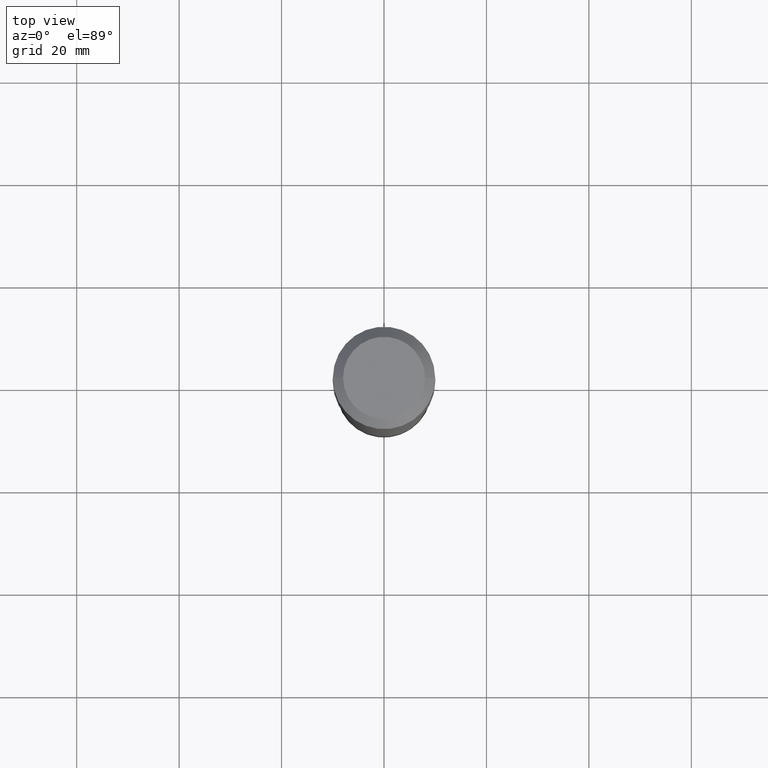
[diagram: clean part render]
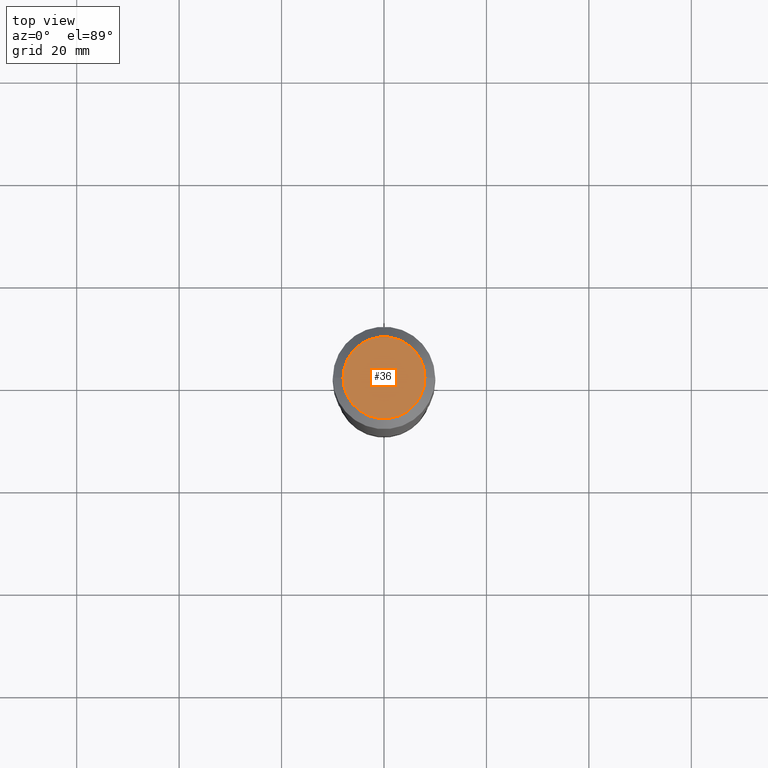
[diagram: same view with one face highlighted and labeled with its STEP entity id]
A machine part, top view. The second image highlights one B-rep face of the part: STEP entity #36.
In plain terms, the highlighted planar face has unit normal (0, -0, -1).
Its self-contained STEP definition (entity closure, byte-faithful):
#34 = ORIENTED_EDGE ( 'NONE', *, *, #495, .T. ) ;
#36 = ADVANCED_FACE ( 'NONE', ( #294 ), #449, .F. ) ;
#89 = CARTESIAN_POINT ( 'NONE',  ( -4.713871149261283817E-47, 6.730158695841841775E-33, 1.927594061857935365E-18 ) ) ;
#101 = EDGE_LOOP ( 'NONE', ( #428, #34 ) ) ;
#103 = CIRCLE ( 'NONE', #168, 0.3149600000000000177 ) ;
#114 = VERTEX_POINT ( 'NONE', #375 ) ;
#122 = DIRECTION ( 'NONE',  ( -2.445468806185136597E-29, 3.491481338843145583E-15, 1.000000000000000000 ) ) ;
#167 = DIRECTION ( 'NONE',  ( -1.000000000000000000, 6.982962677686265922E-15, -4.876176775795935793E-29 ) ) ;
#168 = AXIS2_PLACEMENT_3D ( 'NONE', #403, #122, #289 ) ;
#172 = AXIS2_PLACEMENT_3D ( 'NONE', #444, #490, #377 ) ;
#211 = CIRCLE ( 'NONE', #172, 0.3149600000000000177 ) ;
#234 = CARTESIAN_POINT ( 'NONE',  ( -0.3149600000000000177, 2.336813545274319235E-15, 3.855188123700009542E-18 ) ) ;
#259 = DIRECTION ( 'NONE',  ( 2.438088387897960049E-29, -3.491481338843145188E-15, -1.000000000000000000 ) ) ;
#289 = DIRECTION ( 'NONE',  ( 1.000000000000000000, -6.982962677686265922E-15, 4.876223630392693006E-29 ) ) ;
#291 = EDGE_CURVE ( 'NONE', #425, #114, #103, .T. ) ;
#294 = FACE_OUTER_BOUND ( 'NONE', #101, .T. ) ;
#320 = AXIS2_PLACEMENT_3D ( 'NONE', #89, #259, #167 ) ;
#375 = CARTESIAN_POINT ( 'NONE',  ( 0.3149600000000000177, -2.568339875860642378E-15, 3.855188123732540039E-18 ) ) ;
#377 = DIRECTION ( 'NONE',  ( 1.000000000000000000, -6.982962677686265922E-15, 4.876223630392693006E-29 ) ) ;
#403 = CARTESIAN_POINT ( 'NONE',  ( -9.427742298522567634E-47, 1.346031739168368355E-32, 3.855188123715870730E-18 ) ) ;
#425 = VERTEX_POINT ( 'NONE', #234 ) ;
#428 = ORIENTED_EDGE ( 'NONE', *, *, #291, .T. ) ;
#444 = CARTESIAN_POINT ( 'NONE',  ( -9.427742298522567634E-47, 1.346031739168368355E-32, 3.855188123715870730E-18 ) ) ;
#449 = PLANE ( 'NONE',  #320 ) ;
#490 = DIRECTION ( 'NONE',  ( -2.445468806185136597E-29, 3.491481338843145583E-15, 1.000000000000000000 ) ) ;
#495 = EDGE_CURVE ( 'NONE', #114, #425, #211, .T. ) ;